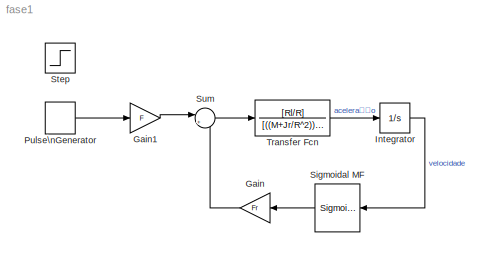
MODEL fase1
KIND model
BLOCK [Gain] Gain
  Gain = Fr
  OutDataTypeStr = Inherit: Inherit via internal rule
  ParamDataTypeStr = Inherit: Inherit via internal rule
  SID = 9
  SaturateOnIntegerOverflow = off
BLOCK [Gain] Gain1
  Gain = F
  OutDataTypeStr = Inherit: Inherit via internal rule
  ParamDataTypeStr = Inherit: Inherit via internal rule
  SID = 11
  SaturateOnIntegerOverflow = off
BLOCK [Integrator] Integrator
  Ports = [1, 1]
  SID = 18
BLOCK [DiscretePulseGenerator] Pulse\nGenerator
  Period = 25
  Ports = [0, 1]
  PulseType = Time based
  PulseWidth = 10
  SID = 4
BLOCK [Reference] Sigmoidal MF  REF=fuzblock/Membership \nFunctions/Sigmoidal MF  (lib defined in mdl_858b3b3e7478)
  Ports = [1, 1]
  SID = 12
  SourceBlock = fuzblock/Membership \nFunctions/Sigmoidal MF
  SourceType = sigmf
  a = 0.5
  c = 1
BLOCK [Step] Step
  SID = 2
  SampleTime = 0
BLOCK [Sum] Sum
  IconShape = round
  InputSameDT = off
  Inputs = |+-
  OutDataTypeStr = Inherit: Inherit via internal rule
  Ports = [2, 1]
  SID = 6
  SaturateOnIntegerOverflow = off
BLOCK [TransferFcn] Transfer Fcn
  Denominator = [((M+Jr/R^2)) 0]
  Numerator = [Rl/R]
  SID = 5
LINE Gain1:1 -> Sum:1
LINE Gain:1 -> Sum:2
LINE Integrator:1 -> Sigmoidal MF:1
LINE Pulse\nGenerator:1 -> Gain1:1
LINE Sigmoidal MF:1 -> Gain:1
LINE Sum:1 -> Transfer Fcn:1
LINE Transfer Fcn:1 -> Integrator:1
